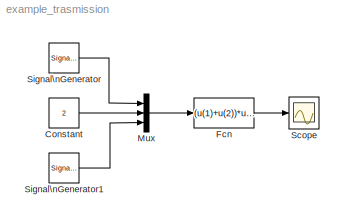
MODEL example_trasmission
KIND model
BLOCK [Constant] Constant
  SID = 2
  Value = 2
BLOCK [Fcn] Fcn
  Expr = (u(1)+u(2))*u(3)
  SID = 5
BLOCK [Mux] Mux
  DisplayOption = bar
  Inputs = 3
  Ports = [3, 1]
  SID = 4
BLOCK [Scope] Scope
  NumInputPorts = 1
  Ports = [1]
  SID = 6
  ScopeSpecificationString = Simulink.scopes.TimeScopeBlockCfg('CurrentConfiguration', extmgr.ConfigurationSet(extmgr.Configuration('Core','General UI',true),extmgr.Configuration('Core','Source UI',true),extmgr.Configuration('Sources','WiredSimulink',true),extmgr.Configuration('Visuals','Time Domain',true,'SerializedDisplays',{struct('MinYLimReal','-24.30244','MaxYLimReal','21.00192','YLabelReal','','MinYLimMag','0.00000','Ma...<+1329ch>
BLOCK [SignalGenerator] Signal\nGenerator
  Amplitude = 2
  Frequency = 1000
  Ports = [0, 1]
  SID = 1
  Units = rad/sec
BLOCK [SignalGenerator] Signal\nGenerator1
  Amplitude = 5
  Frequency = 1e4
  Ports = [0, 1]
  SID = 3
  Units = rad/sec
LINE Constant:1 -> Mux:2
LINE Fcn:1 -> Scope:1
LINE Mux:1 -> Fcn:1
LINE Signal\nGenerator1:1 -> Mux:3
LINE Signal\nGenerator:1 -> Mux:1
